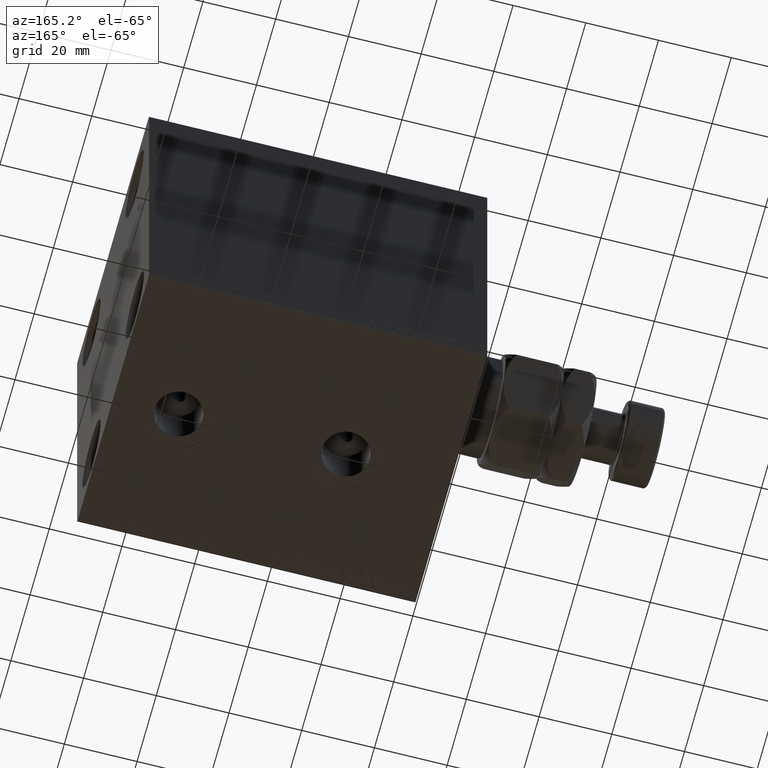
[diagram: clean part render]
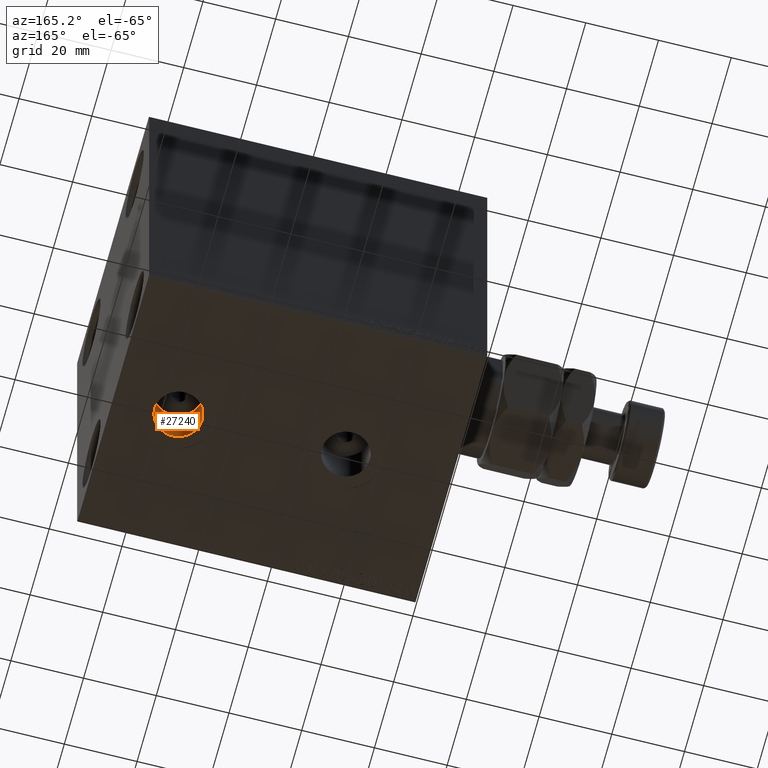
[diagram: same view with one face highlighted and labeled with its STEP entity id]
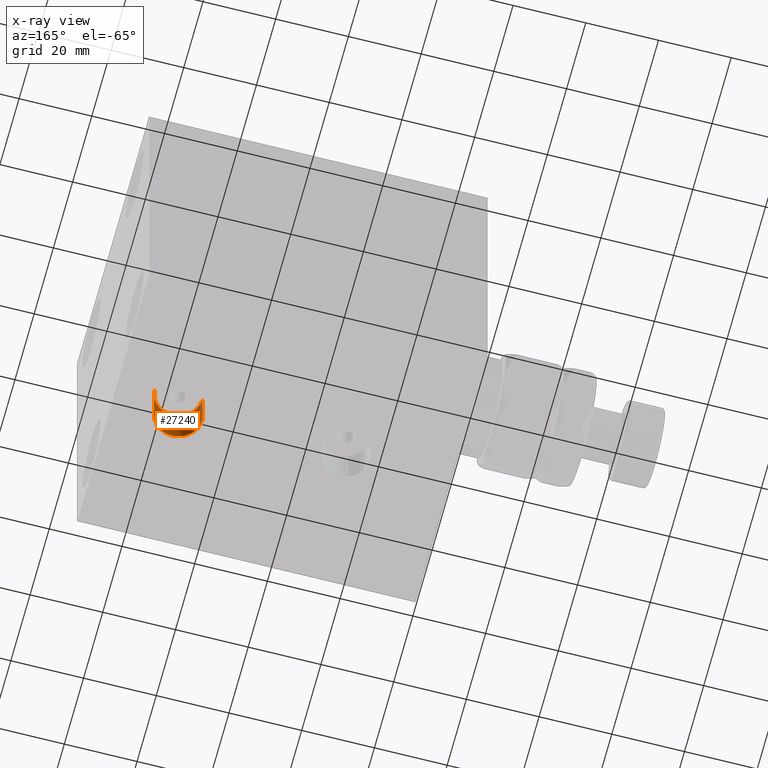
[diagram: x-ray of the same camera — body ghosted, the highlighted face saturated]
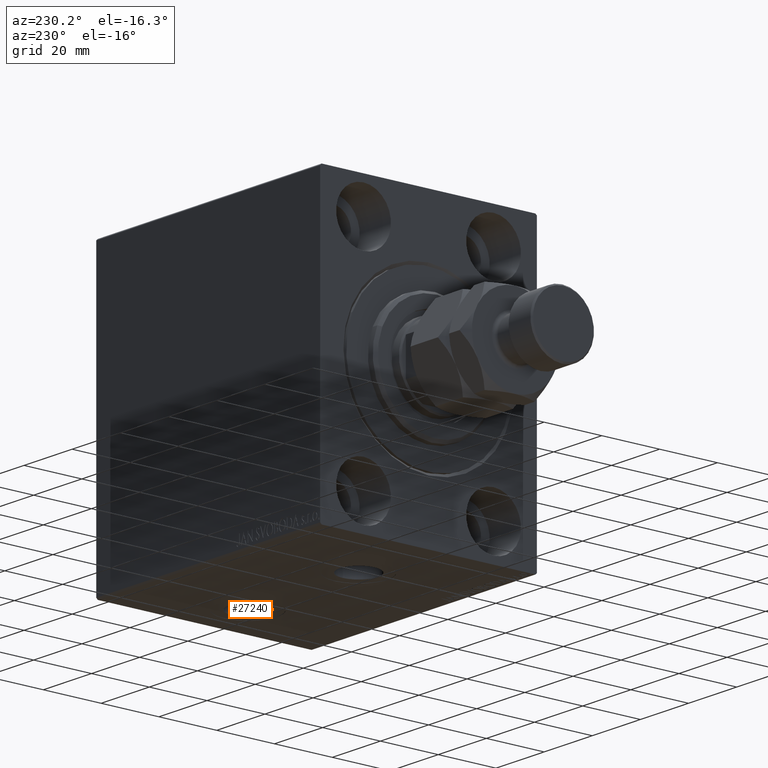
[diagram: same view with one face highlighted and labeled with its STEP entity id]
A machine part, auxiliary view. The second image highlights one B-rep face of the part: STEP entity #27240.
The next image is the same camera in x-ray: the body ghosted, the highlighted face saturated — about 0% of this face is hidden behind the body in this view.
A second angle (auxiliary view) of the same face is appended — the face is thin or edge-on in the first view.
In plain terms, the highlighted cylindrical surface (edge-blend (fillet) strip) has radius 6.58 mm, axis along (-0, -0, -1).
Its self-contained STEP definition (entity closure, byte-faithful):
#2275 = EDGE_CURVE ( 'NONE', #27591, #27674, #16085, .T. ) ;
#4191 = LINE ( 'NONE', #18504, #40704 ) ;
#5076 = VERTEX_POINT ( 'NONE', #5116 ) ;
#5116 = CARTESIAN_POINT ( 'NONE',  ( 68.42000000000000171, -1.162673940005812621E-15, -37.00000000000000000 ) ) ;
#7686 = EDGE_LOOP ( 'NONE', ( #38238, #24011, #37341, #25723 ) ) ;
#7931 = DIRECTION ( 'NONE',  ( -0.000000000000000000, -0.000000000000000000, -1.000000000000000000 ) ) ;
#8173 = LINE ( 'NONE', #22264, #13807 ) ;
#11393 = CYLINDRICAL_SURFACE ( 'NONE', #12167, 6.580000000000002736 ) ;
#12167 = AXIS2_PLACEMENT_3D ( 'NONE', #39625, #7931, #22259 ) ;
#12310 = DIRECTION ( 'NONE',  ( -0.000000000000000000, -0.000000000000000000, -1.000000000000000000 ) ) ;
#13807 = VECTOR ( 'NONE', #12310, 1000.000000000000000 ) ;
#14177 = DIRECTION ( 'NONE',  ( -1.000000000000000000, 0.000000000000000000, 0.000000000000000000 ) ) ;
#14636 = CARTESIAN_POINT ( 'NONE',  ( 75.00000000000001421, -1.162673940005812621E-15, -37.00000000000000000 ) ) ;
#14801 = EDGE_CURVE ( 'NONE', #5076, #27674, #4191, .T. ) ;
#14811 = CARTESIAN_POINT ( 'NONE',  ( 81.58000000000001251, -3.568563461668541708E-16, -49.89999999999999858 ) ) ;
#16085 = CIRCLE ( 'NONE', #27881, 6.580000000000002736 ) ;
#18204 = CIRCLE ( 'NONE', #31514, 6.580000000000002736 ) ;
#18504 = CARTESIAN_POINT ( 'NONE',  ( 68.42000000000000171, -1.162673940005812621E-15, -37.00000000000000000 ) ) ;
#22259 = DIRECTION ( 'NONE',  ( -1.000000000000000000, 0.000000000000000000, 0.000000000000000000 ) ) ;
#22264 = CARTESIAN_POINT ( 'NONE',  ( 81.58000000000001251, -3.568563461668541708E-16, -37.00000000000000000 ) ) ;
#22904 = CARTESIAN_POINT ( 'NONE',  ( 68.42000000000000171, -1.162673940005812621E-15, -49.89999999999999858 ) ) ;
#24011 = ORIENTED_EDGE ( 'NONE', *, *, #32681, .T. ) ;
#25723 = ORIENTED_EDGE ( 'NONE', *, *, #14801, .F. ) ;
#27240 = ADVANCED_FACE ( 'NONE', ( #43994 ), #11393, .F. ) ;
#27591 = VERTEX_POINT ( 'NONE', #14811 ) ;
#27674 = VERTEX_POINT ( 'NONE', #22904 ) ;
#27881 = AXIS2_PLACEMENT_3D ( 'NONE', #44010, #44242, #33620 ) ;
#31514 = AXIS2_PLACEMENT_3D ( 'NONE', #14636, #31999, #14177 ) ;
#31722 = EDGE_CURVE ( 'NONE', #33113, #5076, #18204, .T. ) ;
#31999 = DIRECTION ( 'NONE',  ( 0.000000000000000000, 0.000000000000000000, -1.000000000000000000 ) ) ;
#32681 = EDGE_CURVE ( 'NONE', #33113, #27591, #8173, .T. ) ;
#33113 = VERTEX_POINT ( 'NONE', #41625 ) ;
#33620 = DIRECTION ( 'NONE',  ( -1.000000000000000000, 0.000000000000000000, 0.000000000000000000 ) ) ;
#37341 = ORIENTED_EDGE ( 'NONE', *, *, #2275, .T. ) ;
#38238 = ORIENTED_EDGE ( 'NONE', *, *, #31722, .F. ) ;
#39625 = CARTESIAN_POINT ( 'NONE',  ( 75.00000000000001421, -1.162673940005812621E-15, -37.00000000000000000 ) ) ;
#40704 = VECTOR ( 'NONE', #42563, 1000.000000000000000 ) ;
#41625 = CARTESIAN_POINT ( 'NONE',  ( 81.58000000000001251, -3.568563461668541708E-16, -37.00000000000000000 ) ) ;
#42563 = DIRECTION ( 'NONE',  ( -0.000000000000000000, -0.000000000000000000, -1.000000000000000000 ) ) ;
#43994 = FACE_OUTER_BOUND ( 'NONE', #7686, .T. ) ;
#44010 = CARTESIAN_POINT ( 'NONE',  ( 75.00000000000001421, -1.162673940005812621E-15, -49.89999999999999858 ) ) ;
#44242 = DIRECTION ( 'NONE',  ( 0.000000000000000000, 0.000000000000000000, -1.000000000000000000 ) ) ;